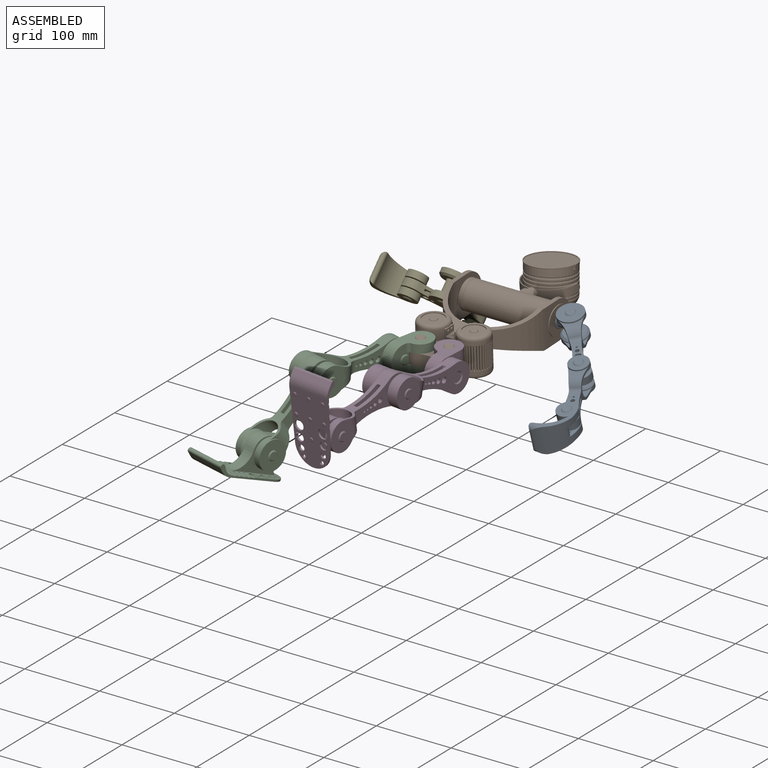
[diagram: assembled view]
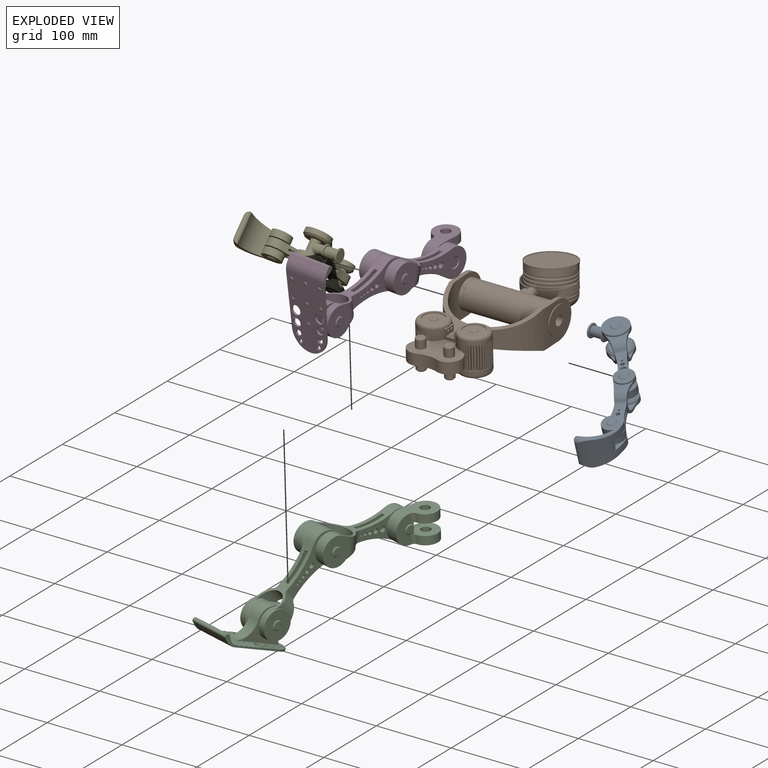
[diagram: exploded view]
GUIDED TOUR — MATED ASSEMBLY WITH SUBASSEMBLIES (Onshape document 0aafc3965a1f92e0126df5ce, AutoMate assembly 0aafc3965a1f92e0126df5ce_8fc87d6d66d698f349bd7961_50a33dfdf3a8bd5118bc41ff_default)

This assembly has 22 component occurrences arranged in 5 top-level units: 0 individual components plus 5 subassemblies (S0, S1, S2, S3, S4). The tour has two levels: first the top level, where each subassembly is treated as one rigid unit; then each subassembly is toured internally in its own section (nesting deeper than one subassembly level is flattened into its subassembly's section).

Components are labeled P0..P21 across the whole record; subassembly units are labeled S0..S4. A mate is a constraint between two units; its type names the relative motion it leaves free:
  FASTENED — locks the two components together rigidly (no relative motion),
  REVOLUTE — leaves rotation about the listed axis free (a hinge).
Axis/direction vectors are unit vectors and 'through' points are millimeter coordinates, both in the assembly's world frame.

TOP-LEVEL MATES (between units; each subassembly's internal mates are listed in its own section)
  1. REVOLUTE "left_shoulder_sagittal": S0 <-> S1, axis (-1.000, 0.000, 0.000) through (64.13, 0.00, 0.00) mm
  2. REVOLUTE "right_hip_frontal": S1 <-> S2, axis (0.000, -0.043, 0.999) through (-19.05, -145.67, 12.85) mm
  3. REVOLUTE "left_hip_frontal": S1 <-> S3, axis (0.000, -0.043, 0.999) through (19.05, -145.67, 12.85) mm

TOP-LEVEL ASSEMBLY ORDER
  1. S1 — the base component [order heuristic]
  2. S0 [order heuristic]
  3. S2 [order heuristic]
  4. S3 [order heuristic]
  5. S4 [order heuristic]
Order-tag legend:
  [order heuristic] — this assembly is geometrically interlocked (no collision-free removal order exists), so components are listed in mate-graph order; insertion feasibility is not verified.

Of the 22 component occurrences, 2 carry the full construction recipe — the FeatureScript program that regenerates the part's solid from scratch; the rest are supplied as boundary geometry only. Each toured unit is shown spotlighted twice — assembled, then exploded with a leader line back to its socket (green = recipe-attached component, orange = geometry-only, blue = subassembly unit; the rest desaturated gray).
NOTE — document 3 of 3 of this assembly tour. The two overview renders and the header above are repeated from document 1; the component sections below continue where the previous document stopped.
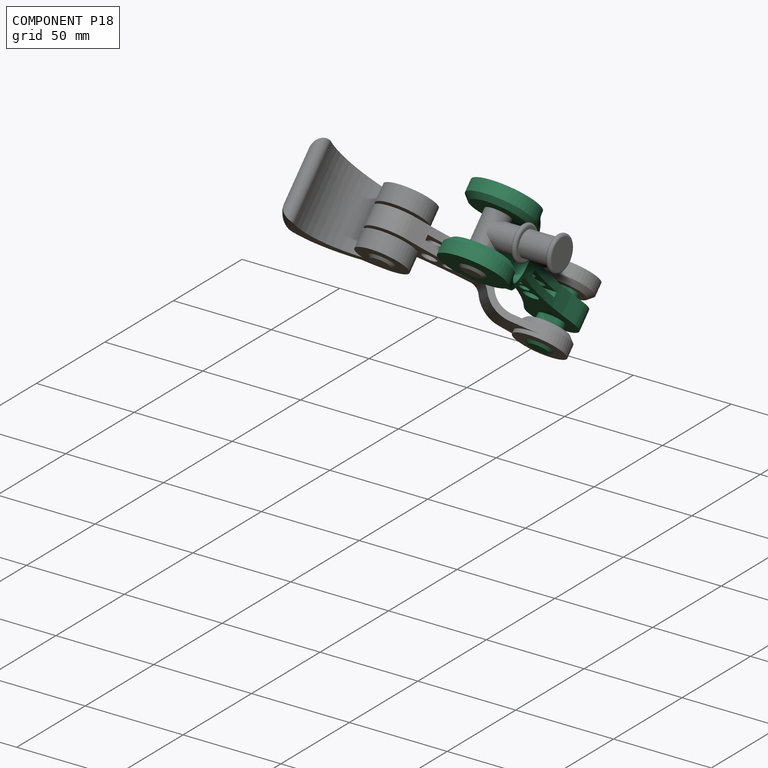
[diagram: component P18 — assembled]
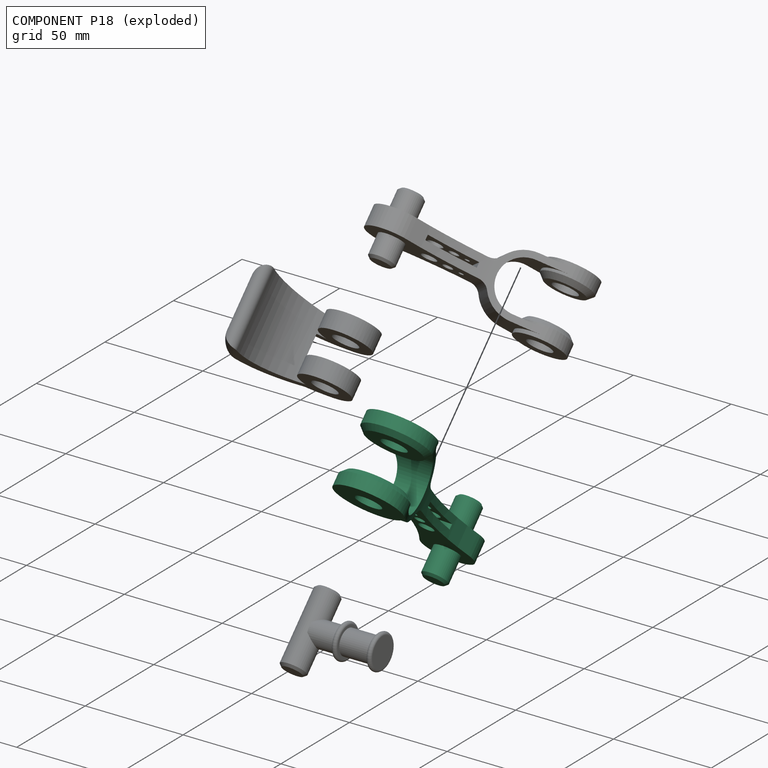
[diagram: component P18 — exploded]
COMPONENT P18 — recipe-attached (CADFS 00294732, mesh-verified: the recipe's output STEP matches this component's geometry to below the mesh-comparison resolution (tessellation chordal tolerance ~0.193 mm)).
Held by: REVOLUTE mate "right_shoulder_frontal" to P16; REVOLUTE mate "right_elbow_frontal" to P9; REVOLUTE mate "right_elbow_frontal" to P9; REVOLUTE mate "right_shoulder_frontal" to P16.
Construction recipe (FeatureScript — the CAD program that rebuilds this solid; sketch coordinates are in the units given by the * unit suffixes, e.g. mm):

FeatureScript 1511;
import(path : "onshape/std/geometry.fs", version : "1511.0");
import(path : "onshape/std/common.fs", version : "1511.0");
const mm = millimeter;
const VERTEX = EntityType.VERTEX;
const EDGE = EntityType.EDGE;
const FACE = EntityType.FACE;
const BODY = EntityType.BODY;
function v(x, y){return vector(x, y);}
function OD(order){return orderDisambiguation(order);}
function OSD(set){return originalSetDisambiguation(set);}
function TD(topology){return topologyDisambiguation(topology);}
function TDD(query){return trueDependencyDisambiguation(query);}
function sQuery(a, b, c) {return sketchEntityQuery(a, b, c);}

annotation { "Feature Type Name" : "Feature", "Feature Type Description" : "" }
export const myFeature = defineFeature(function(context is Context, id is Id, definition is map)
    precondition{}
    {
        {
            var Q0;
            Q0=qCreatedBy(makeId("Front.planeOp"),FACE);
            var sketch = newSketch(context, id + "F0", { "sketchPlane" : qUnion([Q0])});
            skPoint(sketch, "E0.middle", {"position": v(0, 0) * mm});
            skArc(sketch, "E1", {"start": v(-8.17, -19.4) * mm, "mid": v(-13.82, -25.2) * mm, "end": v(-15.88, -33.02) * mm});
            skLineSegment(sketch, "E2.bottom", {"start": v(-5.08, 15.05) * mm, "end": v(5.08, 15.05) * mm});
            skLineSegment(sketch, "E2.left", {"start": v(-5.08, 15.05) * mm, "end": v(-5.08, -13.95) * mm});
            skLineSegment(sketch, "E2.right", {"start": v(5.08, 15.05) * mm, "end": v(5.08, -13.95) * mm});
            skArc(sketch, "E3", {"start": v(12.7, -33.02) * mm, "mid": v(0, -20.32) * mm, "end": v(-12.7, -33.02) * mm});
            skLineSegment(sketch, "E4.top", {"start": v(14.22, -50.8) * mm, "end": v(14.36, -50.8) * mm});
            skLineSegment(sketch, "E4.left", {"start": v(12.7, -33.02) * mm, "end": v(12.7, -49.28) * mm});
            skLineSegment(sketch, "E4.right", {"start": v(15.88, -33.02) * mm, "end": v(15.88, -49.28) * mm});
            skLineSegment(sketch, "E5.top", {"start": v(-14.36, -50.8) * mm, "end": v(-14.22, -50.8) * mm});
            skLineSegment(sketch, "E5.left", {"start": v(-15.88, -33.02) * mm, "end": v(-15.88, -49.28) * mm});
            skLineSegment(sketch, "E5.right", {"start": v(-12.7, -33.02) * mm, "end": v(-12.7, -49.28) * mm});
            skArc(sketch, "E6.trimOffspring", {"start": v(15.88, -33.02) * mm, "mid": v(13.82, -25.2) * mm, "end": v(8.17, -19.4) * mm});
            skPoint(sketch, "E7.visualSharp", {"position": v(-5.08, -17.97) * mm});
            skArc(sketch, "E7.filletArc", {"start": v(-8.17, -19.4) * mm, "mid": v(-5.9, -17.08) * mm, "end": v(-5.08, -13.95) * mm});
            skPoint(sketch, "E8.visualSharp", {"position": v(5.08, -17.97) * mm});
            skArc(sketch, "E8.filletArc", {"start": v(5.08, -13.95) * mm, "mid": v(5.9, -17.08) * mm, "end": v(8.17, -19.4) * mm});
            skArc(sketch, "E9.filletArc", {"start": v(12.7, -49.28) * mm, "mid": v(13.15, -50.35) * mm, "end": v(14.22, -50.8) * mm});
            skArc(sketch, "E10.filletArc", {"start": v(14.36, -50.8) * mm, "mid": v(15.44, -50.35) * mm, "end": v(15.88, -49.28) * mm});
            skArc(sketch, "E11.filletArc", {"start": v(-15.88, -49.28) * mm, "mid": v(-15.44, -50.35) * mm, "end": v(-14.36, -50.8) * mm});
            skArc(sketch, "E12.filletArc", {"start": v(-14.22, -50.8) * mm, "mid": v(-13.15, -50.35) * mm, "end": v(-12.7, -49.28) * mm});
            skSolve(sketch);
        }
        {
            var Q0;
            Q0=qSketchRegion(id+"F0",true);
            extrude(context, id + "F1", {"entities" : qUnion([Q0]), "endBound" : BoundingType.SYMMETRIC, "depth" : 38.1 * mm});
        }
        {
            var Q0;
            Q0=qCreatedBy(makeId("Right.planeOp"),FACE);
            var sketch = newSketch(context, id + "F2", { "sketchPlane" : qUnion([Q0])});
            skCircle(sketch, "E13", {"center": v(0, -50.8) * mm, "radius": 6.35 * mm});
            skSolve(sketch);
        }
        {
            var Q0;
            Q0=qCreatedBy(makeId("Right.planeOp"),FACE);
            var sketch = newSketch(context, id + "F3", { "sketchPlane" : qUnion([Q0])});
            skCircle(sketch, "E14", {"center": v(0, -50.8) * mm, "radius": 16.51 * mm});
            skSolve(sketch);
        }
        {
            var Q0;
            Q0=qSketchRegion(id+"F3",true);
            extrude(context, id + "F4", {"entities" : qUnion([Q0]), "operationType" : NewBodyOperationType.ADD, "endBound" : BoundingType.SYMMETRIC, "depth" : 35.56 * mm});
        }
        {
            var Q0;
            Q0=qCreatedBy(makeId("Front.planeOp"),FACE);
            var sketch = newSketch(context, id + "F5", { "sketchPlane" : qUnion([Q0])});
            skLineSegment(sketch, "E15.bottom", {"start": v(8.9, -69.85) * mm, "end": v(-8.89, -69.85) * mm});
            skLineSegment(sketch, "E15.top", {"start": v(8.9, -31.75) * mm, "end": v(-8.89, -31.75) * mm});
            skLineSegment(sketch, "E15.left", {"start": v(8.9, -69.85) * mm, "end": v(8.9, -31.75) * mm});
            skLineSegment(sketch, "E15.right", {"start": v(-8.89, -69.85) * mm, "end": v(-8.89, -31.75) * mm});
            skPoint(sketch, "E15.middle", {"position": v(0, -50.8) * mm});
            skSolve(sketch);
        }
        {
            var Q0;
            Q0=qSketchRegion(id+"F2",true);
            extrude(context, id + "F6", {"entities" : qUnion([Q0]), "operationType" : NewBodyOperationType.REMOVE, "endBound" : BoundingType.SYMMETRIC, "oppositeDirection" : true, "depth" : 76.2 * mm});
        }
        {
            var Q0;
            Q0=qSketchRegion(id+"F5",true);
            extrude(context, id + "F7", {"entities" : qUnion([Q0]), "operationType" : NewBodyOperationType.REMOVE, "endBound" : BoundingType.SYMMETRIC, "oppositeDirection" : true, "depth" : 38.1 * mm});
        }
        {
            var Q0;
            Q0=makeQuery(id+"F7.boolean.opBoolean","INTERSECT",EDGE,{"derivedFrom":[makeQuery(id+"F4.opExtrude","SWEPT_FACE",FACE,{"disambiguationData":[OSD([sQuery(id+"F3.wireOp",EDGE,"E14")])]}),makeQuery(id+"F7.opExtrude","SWEPT_FACE",FACE,{"disambiguationData":[OSD([sQuery(id+"F5.wireOp",EDGE,"E15.right")])]})]});
            var Q1;
            Q1=makeQuery(id+"F7.boolean.opBoolean","INTERSECT",EDGE,{"derivedFrom":[makeQuery(id+"F4.opExtrude","SWEPT_FACE",FACE,{"disambiguationData":[OSD([sQuery(id+"F3.wireOp",EDGE,"E14")])]}),makeQuery(id+"F7.opExtrude","SWEPT_FACE",FACE,{"disambiguationData":[OSD([sQuery(id+"F5.wireOp",EDGE,"E15.left")])]})]});
            chamfer(context, id + "F8", {"entities" : qUnion([Q0, Q1]), "width" : 2.54 * mm, "tangentPropagation" : true});
        }
        {
            var Q0;
            Q0=qCreatedBy(makeId("Right.planeOp"),FACE);
            var sketch = newSketch(context, id + "F9", { "sketchPlane" : qUnion([Q0])});
            skArc(sketch, "E16", {"start": v(19.05, 38.09) * mm, "mid": v(0, 57.15) * mm, "end": v(-19.05, 38.09) * mm});
            skLineSegment(sketch, "E17.top", {"start": v(-19.05, 12.69) * mm, "end": v(19.05, 12.69) * mm});
            skLineSegment(sketch, "E17.left", {"start": v(-19.05, 38.09) * mm, "end": v(-19.05, 12.69) * mm});
            skLineSegment(sketch, "E17.right", {"start": v(19.05, 38.09) * mm, "end": v(19.05, 12.69) * mm});
            skSolve(sketch);
        }
        {
            var Q0;
            Q0=qSketchRegion(id+"F9",true);
            extrude(context, id + "F10", {"entities" : qUnion([Q0]), "operationType" : NewBodyOperationType.ADD, "endBound" : BoundingType.SYMMETRIC, "depth" : 10.16 * mm});
        }
        {
            var Q0;
            Q0=qCreatedBy(makeId("Right.planeOp"),FACE);
            var sketch = newSketch(context, id + "F11", { "sketchPlane" : qUnion([Q0])});
            skCircle(sketch, "E18", {"center": v(0, 38.1) * mm, "radius": 6.35 * mm});
            skSolve(sketch);
        }
        {
            var Q0;
            Q0=qSketchRegion(id+"F11",true);
            extrude(context, id + "F12", {"entities" : qUnion([Q0]), "operationType" : NewBodyOperationType.ADD, "endBound" : BoundingType.SYMMETRIC, "depth" : 38.1 * mm});
        }
        {
            var Q0;
            Q0=makeQuery(id+"F12.opExtrude","CAP_EDGE",EDGE,{"disambiguationData":[OSD([sQuery(id+"F11.wireOp",EDGE,"E18")])],"isStart":true});
            var Q1;
            Q1=makeQuery(id+"F12.opExtrude","CAP_EDGE",EDGE,{"disambiguationData":[OSD([sQuery(id+"F11.wireOp",EDGE,"E18")])],"isStart":false});
            chamfer(context, id + "F13", {"entities" : qUnion([Q0, Q1]), "width" : 1.27 * mm, "tangentPropagation" : true});
        }
        {
            var Q0;
            Q0=qCreatedBy(makeId("Right.planeOp"),FACE);
            var sketch = newSketch(context, id + "F14", { "sketchPlane" : qUnion([Q0])});
            skArc(sketch, "E19", {"start": v(11.92, 33.71) * mm, "mid": v(0, 50.8) * mm, "end": v(-11.92, 33.71) * mm});
            skArc(sketch, "E20", {"start": v(-15, -43.9) * mm, "mid": v(0, -67.31) * mm, "end": v(15, -43.9) * mm});
            skArc(sketch, "E21", {"start": v(11.92, 33.71) * mm, "mid": v(5.75, -5.4) * mm, "end": v(15, -43.9) * mm});
            skPoint(sketch, "E22.center.orphan", {"position": v(45.72, -6.35) * mm});
            skPoint(sketch, "E23.center.orphan", {"position": v(-45.72, -6.35) * mm});
            skArc(sketch, "E24", {"start": v(-15, -43.9) * mm, "mid": v(-5.75, -5.4) * mm, "end": v(-11.92, 33.71) * mm});
            skSolve(sketch);
        }
        {
            var Q0;
            Q0=qSketchRegion(id+"F14",true);
            extrude(context, id + "F15", {"entities" : qUnion([Q0]), "operationType" : NewBodyOperationType.INTERSECT, "endBound" : BoundingType.SYMMETRIC, "depth" : 76.2 * mm});
        }
        {
            var Q0;
            Q0=qCreatedBy(makeId("Front.planeOp"),FACE);
            var sketch = newSketch(context, id + "F16", { "sketchPlane" : qUnion([Q0])});
            skLineSegment(sketch, "E25.bottom", {"start": v(-1.27, -8.87) * mm, "end": v(1.27, -8.87) * mm});
            skLineSegment(sketch, "E25.top", {"start": v(-1.27, 16.53) * mm, "end": v(1.27, 16.53) * mm});
            skLineSegment(sketch, "E25.left", {"start": v(-1.27, -8.87) * mm, "end": v(-1.27, 16.53) * mm});
            skLineSegment(sketch, "E25.right", {"start": v(1.27, -8.87) * mm, "end": v(1.27, 16.53) * mm});
            skSolve(sketch);
        }
        {
            var Q0;
            Q0=qSketchRegion(id+"F16",true);
            extrude(context, id + "F17", {"entities" : qUnion([Q0]), "operationType" : NewBodyOperationType.REMOVE, "endBound" : BoundingType.SYMMETRIC, "oppositeDirection" : true, "depth" : 50.8 * mm});
        }
        {
            var Q0;
            Q0=qCreatedBy(makeId("Right.planeOp"),FACE);
            var sketch = newSketch(context, id + "F18", { "sketchPlane" : qUnion([Q0])});
            skCircle(sketch, "E26", {"center": v(0, 10.16) * mm, "radius": 3.81 * mm});
            skCircle(sketch, "E27", {"center": v(0, 1.27) * mm, "radius": 2.54 * mm});
            skCircle(sketch, "E28", {"center": v(0, -5.08) * mm, "radius": 1.27 * mm});
            skSolve(sketch);
        }
        {
            var Q0;
            Q0=qSketchRegion(id+"F18",true);
            extrude(context, id + "F19", {"entities" : qUnion([Q0]), "operationType" : NewBodyOperationType.REMOVE, "endBound" : BoundingType.SYMMETRIC, "oppositeDirection" : true, "depth" : 25.4 * mm});
        }
        {
            var Q0;
            Q0=makeQuery(id+"F1.opExtrude","SWEPT_BODY",BODY,{"disambiguationData":[OSD([sQuery(id+"F0.wireOp",EDGE,"E1"),sQuery(id+"F0.wireOp",EDGE,"E2.bottom"),sQuery(id+"F0.wireOp",EDGE,"E2.left"),sQuery(id+"F0.wireOp",EDGE,"E2.right"),sQuery(id+"F0.wireOp",EDGE,"E3"),sQuery(id+"F0.wireOp",EDGE,"E4.top"),sQuery(id+"F0.wireOp",EDGE,"E4.left"),sQuery(id+"F0.wireOp",EDGE,"E4.right"),sQuery(id+"F0.wireOp",EDGE,"E5.top"),sQuery(id+"F0.wireOp",EDGE,"E5.left"),sQuery(id+"F0.wireOp",EDGE,"E5.right"),sQuery(id+"F0.wireOp",EDGE,"E6.trimOffspring"),sQuery(id+"F0.wireOp",EDGE,"E7.filletArc"),sQuery(id+"F0.wireOp",EDGE,"E8.filletArc"),sQuery(id+"F0.wireOp",EDGE,"E9.filletArc"),sQuery(id+"F0.wireOp",EDGE,"E10.filletArc"),sQuery(id+"F0.wireOp",EDGE,"E11.filletArc"),sQuery(id+"F0.wireOp",EDGE,"E12.filletArc")])]});
            var Q1;
            {var subQ0=sQuery(id+"F11.wireOp",EDGE,"E18");Q1=makeQuery(id+"F13.opChamfer","BLEND_EDGE",EDGE,{"blendedFrom":[makeQuery(id+"F12.opExtrude","CAP_EDGE",EDGE,{"disambiguationData":[OSD([subQ0])],"isStart":false}),makeQuery(id+"F12.opExtrude","CAP_FACE",FACE,{"disambiguationData":[OSD([subQ0])],"isStart":false})],"blendedInto":[makeQuery(id+"F12.opExtrude","CAP_FACE",FACE,{"disambiguationData":[OSD([subQ0])],"isStart":false})]});}
            transform(context, id + "F20", {"entities" : qUnion([Q0]), "transformType" : TransformType.ROTATION, "transformAxis" : qUnion([Q1]), "angle" : 3.14 * radian, "makeCopy" : false});
        }
        {
            var Q0;
            Q0=qCreatedBy(makeId("Front.planeOp"),FACE);
            var sketch = newSketch(context, id + "F21", { "sketchPlane" : qUnion([Q0])});
            skPoint(sketch, "E29", {"position": v(-17.78, 127) * mm});
            skLineSegment(sketch, "E30", {"start": v(-17.78, 127) * mm, "end": v(17.78, 127) * mm});
            skPoint(sketch, "E31", {"position": v(0, 127) * mm});
            skLineSegment(sketch, "E32", {"start": v(0, 127) * mm, "end": v(0, 0) * mm, "construction": true});
            skSolve(sketch);
        }
        {
            var Q0;
            Q0=makeQuery(id+"F1.opExtrude","SWEPT_BODY",BODY,{"disambiguationData":[OSD([sQuery(id+"F0.wireOp",EDGE,"E1"),sQuery(id+"F0.wireOp",EDGE,"E2.bottom"),sQuery(id+"F0.wireOp",EDGE,"E2.left"),sQuery(id+"F0.wireOp",EDGE,"E2.right"),sQuery(id+"F0.wireOp",EDGE,"E3"),sQuery(id+"F0.wireOp",EDGE,"E4.top"),sQuery(id+"F0.wireOp",EDGE,"E4.left"),sQuery(id+"F0.wireOp",EDGE,"E4.right"),sQuery(id+"F0.wireOp",EDGE,"E5.top"),sQuery(id+"F0.wireOp",EDGE,"E5.left"),sQuery(id+"F0.wireOp",EDGE,"E5.right"),sQuery(id+"F0.wireOp",EDGE,"E6.trimOffspring"),sQuery(id+"F0.wireOp",EDGE,"E7.filletArc"),sQuery(id+"F0.wireOp",EDGE,"E8.filletArc"),sQuery(id+"F0.wireOp",EDGE,"E9.filletArc"),sQuery(id+"F0.wireOp",EDGE,"E10.filletArc"),sQuery(id+"F0.wireOp",EDGE,"E11.filletArc"),sQuery(id+"F0.wireOp",EDGE,"E12.filletArc")])]});
            var Q1;
            Q1=sQuery(id+"F21.wireOp",EDGE,"E32");
            transform(context, id + "F22", {"entities" : qUnion([Q0]), "transformType" : TransformType.TRANSLATION_ENTITY, "oppositeDirectionEntity" : false, "transformLine" : qUnion([Q1]), "makeCopy" : false});
        }
    });
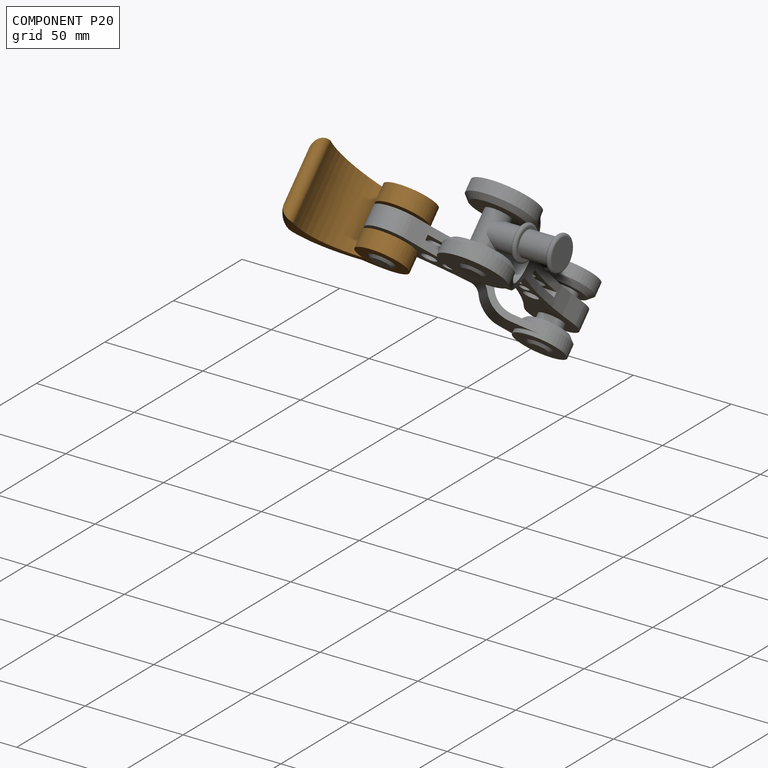
[diagram: component P20 — assembled]
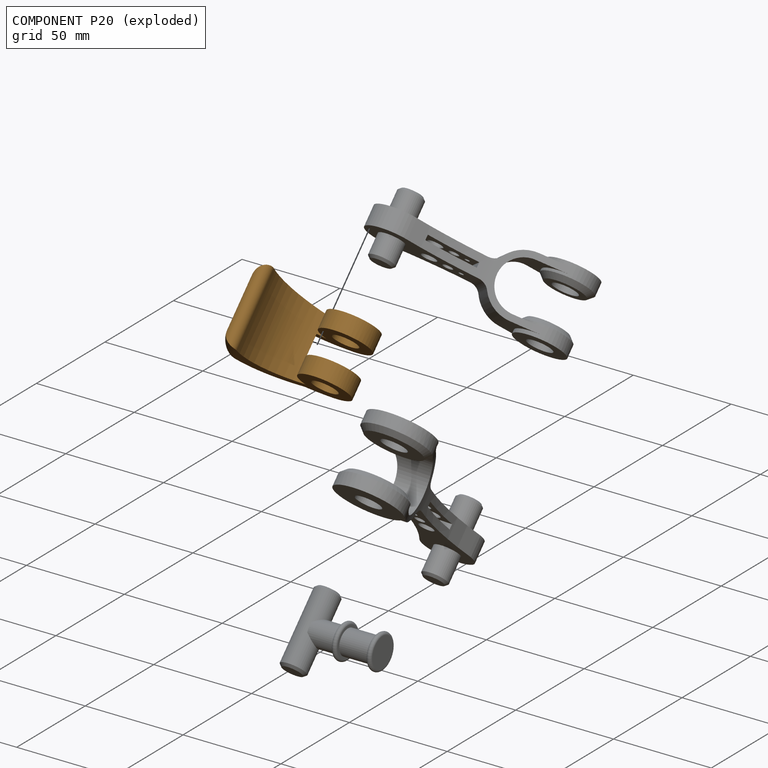
[diagram: component P20 — exploded]
COMPONENT P20 — geometry summary (no construction recipe available for this part):
  bounding box: 59.4 x 38.8 x 32.3 mm
  B-rep topology: 1 solid, 19 faces, 98 edges
  volume: 18510 mm^3 (25% of its bounding box)
  symmetry: mirror-symmetric across its x mid-plane
Held by: REVOLUTE mate "right_wrist_frontal" to P9; REVOLUTE mate "right_wrist_frontal" to P9.
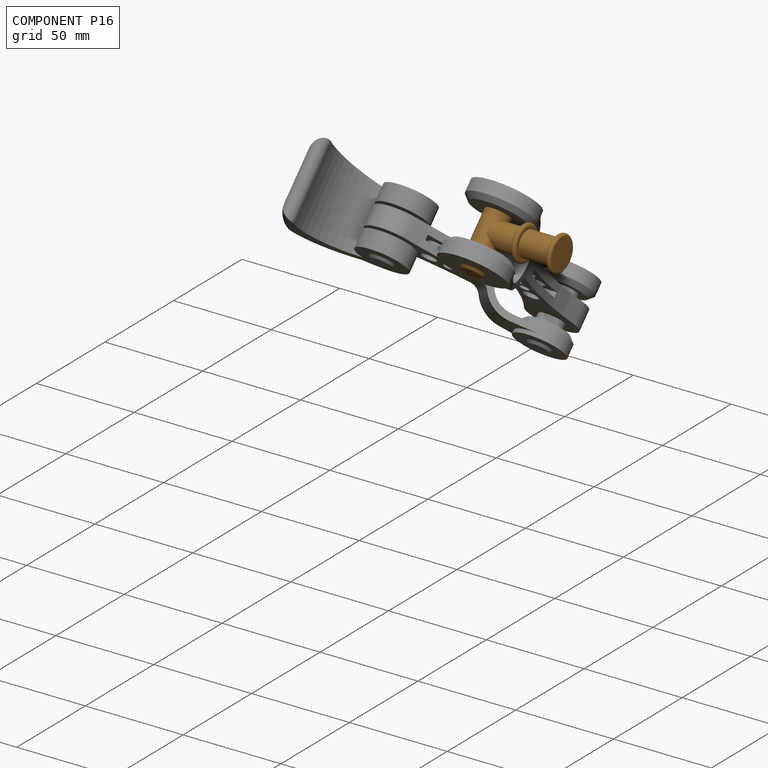
[diagram: component P16 — assembled]
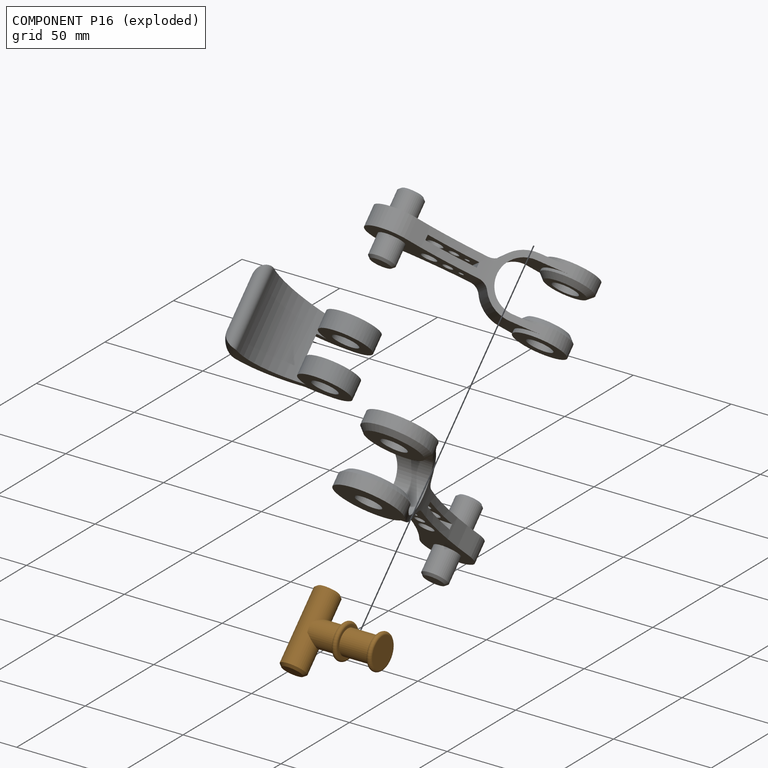
[diagram: component P16 — exploded]
COMPONENT P16 — geometry summary (no construction recipe available for this part):
  bounding box: 43.2 x 38.1 x 19.2 mm
  B-rep topology: 1 solid, 15 faces, 50 edges
  volume: 9290 mm^3 (29% of its bounding box)
  symmetry: 2-fold rotationally symmetric about the x axis; mirror-symmetric across its y mid-plane, z mid-plane
Held by: REVOLUTE mate "right_shoulder_frontal" to P18; REVOLUTE mate "right_shoulder_frontal" to P18.
PROVENANCE & LICENSES
Assembly (occurrences, transforms, mates, per-part STEP geometry): AutoMate dataset, Zenodo record 7776208, CC0.
Construction recipes: CADFS (HuggingFace VladPyatov/CADFS, CC-BY-4.0, layered over the ABC dataset), FeatureScript reconstruction programs keyed by ABC model id.
Join: ABC meta listings map ABC model id -> Onshape documentId; within a shared document, parts are matched by geometric signature (bounding-box dims + volume at 0.1% relative tolerance, exact B-rep face/solid counts).
Verification: 2 of this assembly's 22 components carry a recipe attachment, and every attachment is mesh-verified: the CADFS STEP and the AutoMate member STEP were compared as meshes in their shared local frame (symmetric sampled-point-to-mesh distance); worst across the 2 attachments: below the mesh-comparison resolution (tessellation chordal tolerance ~0.193 mm) on a 128 mm part.
Renders: orthographic iso camera (az 35 / el 25); the floor grid conveys scale (grid pitch printed in each image; no ruler). In the exploded view each component is displaced by its stored offset vector: the offsets alone carry the explosion direction (mate normal/axis signs are not orientation cues and do not encode it), and separation distances are assigned per mate-chain, not proportionally to assembly-order depth.
